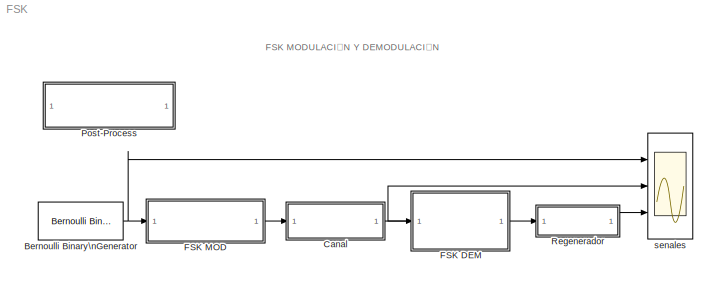
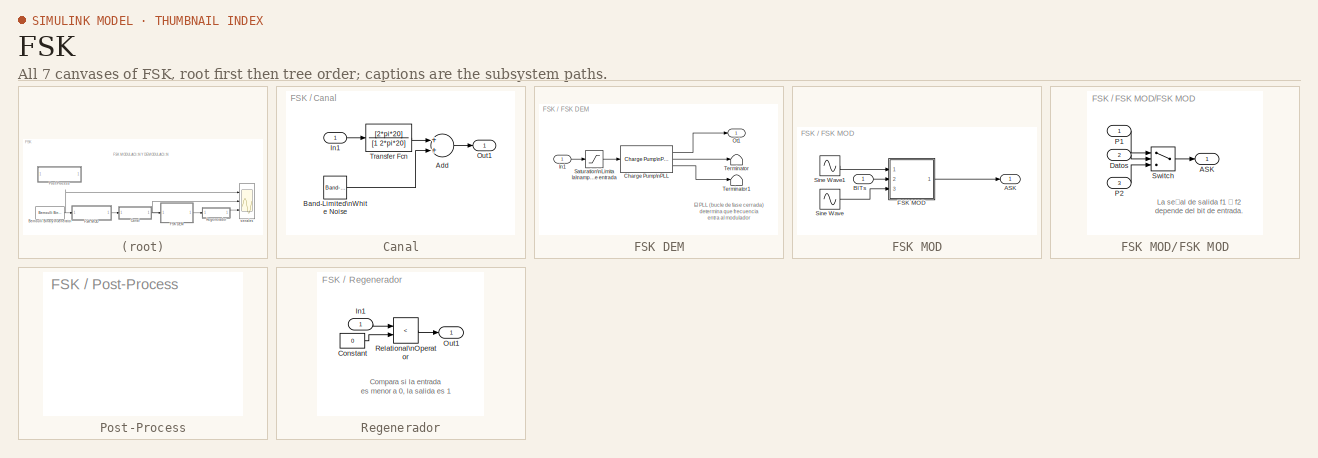
[diagram: thumbnail index - all 7 canvases of the model, root first then tree order]
MODEL FSK
KIND model
BLOCK [Reference] Bernoulli Binary\nGenerator  REF=commrandsrc2/Bernoulli Binary\nGenerator
  DialogController = commDDGCreate
  DialogControllerArgs = DataTag0
  FunctionWithSeparateData = off
  GeneratePreprocessorConditionals = off
  P = PZf
  Ports = [0, 1]
  RTWMemSecDataConstants = Inherit from model
  RTWMemSecDataInternal = Inherit from model
  RTWMemSecDataParameters = Inherit from model
  RTWMemSecFuncExecute = Inherit from model
  RTWMemSecFuncInitTerm = Inherit from model
  SID = 1
  ShowPortLabels = FromPortIcon
  SourceBlock = commrandsrc2/Bernoulli Binary\nGenerator
  SourceType = Bernoulli Binary Generator
  SystemSampleTime = -1
  Ts = BSTf
  frameBased = off
  orient = off
  outDataType = double
  sampPerFrame = 1
  seed = 61
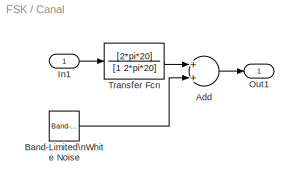
BLOCK [SubSystem] Canal
  FunctionWithSeparateData = off
  MaskHideContents = off
  MinAlgLoopOccurrences = off
  Opaque = off
  Ports = [1, 1]
  PropExecContextOutsideSubsystem = off
  RTWSystemCode = Auto
  RequestExecContextInheritance = off
  SID = 2
BLOCK [Sum] Canal/Add
  InputSameDT = off
  OutDataTypeStr = Inherit: Inherit via internal rule
  Ports = [2, 1]
  SID = 4
  SaturateOnIntegerOverflow = off
BLOCK [Reference] Canal/Band-Limited\nWhite Noise  REF=simulink/Sources/Band-Limited\nWhite Noise
  Cov = [0.002]
  FunctionWithSeparateData = off
  GeneratePreprocessorConditionals = off
  Ports = [0, 1]
  RTWMemSecDataConstants = Inherit from model
  RTWMemSecDataInternal = Inherit from model
  RTWMemSecDataParameters = Inherit from model
  RTWMemSecFuncExecute = Inherit from model
  RTWMemSecFuncInitTerm = Inherit from model
  SID = 5
  ShowPortLabels = FromPortIcon
  SourceBlock = simulink/Sources/Band-Limited\nWhite Noise
  SourceType = Band-Limited White Noise.
  SystemSampleTime = -1
  Ts = 1
  VectorParams1D = on
  seed = [23341]
BLOCK [Inport] Canal/In1
  IconDisplay = Port number
  SID = 3
BLOCK [Outport] Canal/Out1
  IconDisplay = Port number
  SID = 7
BLOCK [TransferFcn] Canal/Transfer Fcn
  Denominator = [1 2*pi*20]
  Numerator = [2*pi*20]
  SID = 6
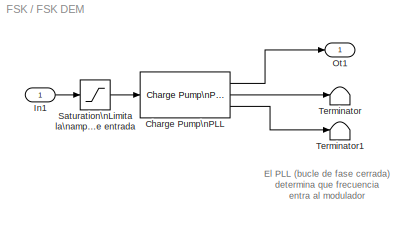
BLOCK [SubSystem] FSK DEM
  FunctionWithSeparateData = off
  MaskHideContents = off
  MinAlgLoopOccurrences = off
  Opaque = off
  Ports = [1, 1]
  PropExecContextOutsideSubsystem = off
  RTWSystemCode = Auto
  RequestExecContextInheritance = off
  SID = 8
BLOCK [Reference] FSK DEM/Charge Pump\nPLL  REF=commsynccomp2/Charge Pump\nPLL
  Ac = 1
  Fc = 10
  Fd = [1   2*pi*1]
  Fn = [2*pi*1]
  FunctionWithSeparateData = off
  GeneratePreprocessorConditionals = off
  Kvco = 4
  Ph = 0
  Ports = [1, 3]
  RTWMemSecDataConstants = Inherit from model
  RTWMemSecDataInternal = Inherit from model
  RTWMemSecDataParameters = Inherit from model
  RTWMemSecFuncExecute = Inherit from model
  RTWMemSecFuncInitTerm = Inherit from model
  SID = 10
  ShowPortLabels = FromPortIcon
  SourceBlock = commsynccomp2/Charge Pump\nPLL
  SourceType = Charge Pump PLL
  SystemSampleTime = -1
BLOCK [Inport] FSK DEM/In1
  IconDisplay = Port number
  SID = 9
BLOCK [Outport] FSK DEM/Ot1
  IconDisplay = Port number
  SID = 12
BLOCK [Saturate] FSK DEM/Saturation\nLimita la\namplitud de la\nseñal de entrada
  InputPortMap = u0
  Ports = [1, 1]
  SID = 11
BLOCK [Terminator] FSK DEM/Terminator
  SID = 31
BLOCK [Terminator] FSK DEM/Terminator1
  SID = 32
BLOCK [SubSystem] FSK MOD
  FunctionWithSeparateData = off
  MaskHideContents = off
  MinAlgLoopOccurrences = off
  Opaque = off
  Ports = [1, 1]
  PropExecContextOutsideSubsystem = off
  RTWSystemCode = Auto
  RequestExecContextInheritance = off
  SID = 13
BLOCK [Outport] FSK MOD/ASK
  IconDisplay = Port number
  SID = 23
BLOCK [Inport] FSK MOD/BITs
  IconDisplay = Port number
  SID = 14
BLOCK [SubSystem] FSK MOD/FSK MOD
  FunctionWithSeparateData = off
  MaskHideContents = off
  MinAlgLoopOccurrences = off
  Opaque = off
  Ports = [3, 1]
  PropExecContextOutsideSubsystem = off
  RTWSystemCode = Auto
  RequestExecContextInheritance = off
  SID = 15
BLOCK [Outport] FSK MOD/FSK MOD/ASK
  IconDisplay = Port number
  SID = 20
BLOCK [Inport] FSK MOD/FSK MOD/Datos
  IconDisplay = Port number
  Port = 2
  SID = 17
BLOCK [Inport] FSK MOD/FSK MOD/P1
  IconDisplay = Port number
  SID = 16
BLOCK [Inport] FSK MOD/FSK MOD/P2
  IconDisplay = Port number
  Port = 3
  SID = 18
BLOCK [Switch] FSK MOD/FSK MOD/Switch
  InputSameDT = off
  SID = 19
  SaturateOnIntegerOverflow = off
  Threshold = 0.5
BLOCK [Sin] FSK MOD/Sine Wave
  Amplitude = A2f
  Frequency = F2f
  Ports = [0, 1]
  SID = 21
  SampleTime = STf
  Samples = 25
BLOCK [Sin] FSK MOD/Sine Wave1
  Amplitude = A1f
  Frequency = F1f
  Ports = [0, 1]
  SID = 22
  SampleTime = STf
  Samples = 50
BLOCK [SubSystem] Post-Process
  FunctionWithSeparateData = off
  MaskCallbackString = |||||
  MaskDisplay = disp('Sim Parameters')
  MaskEnableString = on,on,on,on,on,on
  MaskHideContents = off
  MaskIconFrame = on
  MaskIconOpaque = on
  MaskIconRotate = none
  MaskIconUnits = autoscale
  MaskInitialization = %sim_t = 100; %simulation time\n%BSTf = 5; % source sample time\nPZf = .3; % probability of zero\n\n%STf = 1/100; % sample time\n%A1f = 1; % amplitude sine 1 - mod.\n%A2f = 1; % amplitude sine 2 - mod.\n%F1f = 2*pi*8; % Freg Sine 1\n%F2f = 2*pi*12; % Freg Sine 2\n\nswitch sim_t\n    case 1\n        sim_t = 25;\n    case 2\n        sim_t = 50;\n    case 3\n        sim_t = 100;\n    case 4\n        ...<+875ch>
  MaskPortRotate = default
  MaskPromptString = Sim Time [100]|Source Sample Time|Freq. Sine 1 [8K]|Amp. Sine 1 [1]|Freq. Sine 2 [12K]|Amp. Sine 2 [1]
  MaskStyleString = popup(25|50|100|250),popup(3|5|8|10|12),popup(6000|8000|10000|16000),edit,popup(8000|10000|12000|16000),edit
  MaskToolTipString = on,on,on,on,on,on
  MaskTunableValueString = on,on,on,on,on,on
  MaskValueString = 50|3|6000|1|12000|1
  MaskVariables = sim_t=@1;BSTf=@2;F1f=@3;A1f=@4;F2f=@5;A2f=@6;
  MaskVisibilityString = on,on,on,on,on,on
  MinAlgLoopOccurrences = off
  Opaque = off
  Ports = []
  PropExecContextOutsideSubsystem = off
  RTWSystemCode = Auto
  RequestExecContextInheritance = off
  SID = 30
BLOCK [SubSystem] Regenerador
  FunctionWithSeparateData = off
  MaskHideContents = off
  MinAlgLoopOccurrences = off
  Opaque = off
  Ports = [1, 1]
  PropExecContextOutsideSubsystem = off
  RTWSystemCode = Auto
  RequestExecContextInheritance = off
  SID = 24
BLOCK [Constant] Regenerador/Constant
  SID = 26
  Value = 0
BLOCK [Inport] Regenerador/In1
  IconDisplay = Port number
  SID = 25
BLOCK [Outport] Regenerador/Out1
  IconDisplay = Port number
  SID = 28
BLOCK [RelationalOperator] Regenerador/Relational\nOperator
  InputSameDT = off
  Operator = <
  OutDataTypeStr = boolean
  Ports = [2, 1]
  SID = 27
BLOCK [Scope] senales
  DataFormat = StructureWithTime
  Floating = off
  LimitDataPoints = off
  NumInputPorts = 3
  Ports = [3]
  SID = 29
  SampleTime = 0
  YMax = 1.5~2~1.5
  YMin = -0.5~-2~-0.5
  ZoomMode = xonly
ANNOTATION (root): FSK MODULACIÓN Y DEMODULACIÓN
ANNOTATION FSK DEM: El PLL (bucle de fase cerrada)\ndetermina que frecuencia\nentra al modulador
ANNOTATION FSK MOD/FSK MOD: La señal de salida f1 ó f2\ndepende del bit de entrada.
ANNOTATION Regenerador: Compara si la entrada\nes menor a 0, la salida es 1
NET Bernoulli Binary\nGenerator:1 -> FSK MOD:1, senales:1
LINE Canal/Add:1 -> Canal/Out1:1
LINE Canal/Band-Limited\nWhite Noise:1 -> Canal/Add:2
LINE Canal/In1:1 -> Canal/Transfer Fcn:1
LINE Canal/Transfer Fcn:1 -> Canal/Add:1
NET Canal:1 -> FSK DEM:1, senales:2
LINE FSK DEM/Charge Pump\nPLL:1 -> FSK DEM/Ot1:1
LINE FSK DEM/Charge Pump\nPLL:2 -> FSK DEM/Terminator:1
LINE FSK DEM/Charge Pump\nPLL:3 -> FSK DEM/Terminator1:1
LINE FSK DEM/In1:1 -> FSK DEM/Saturation\nLimita la\namplitud de la\nseñal de entrada:1
LINE FSK DEM/Saturation\nLimita la\namplitud de la\nseñal de entrada:1 -> FSK DEM/Charge Pump\nPLL:1
LINE FSK DEM:1 -> Regenerador:1
LINE FSK MOD/BITs:1 -> FSK MOD/FSK MOD:2
LINE FSK MOD/FSK MOD/Datos:1 -> FSK MOD/FSK MOD/Switch:2
LINE FSK MOD/FSK MOD/P1:1 -> FSK MOD/FSK MOD/Switch:1
LINE FSK MOD/FSK MOD/P2:1 -> FSK MOD/FSK MOD/Switch:3
LINE FSK MOD/FSK MOD/Switch:1 -> FSK MOD/FSK MOD/ASK:1
LINE FSK MOD/FSK MOD:1 -> FSK MOD/ASK:1
LINE FSK MOD/Sine Wave1:1 -> FSK MOD/FSK MOD:1
LINE FSK MOD/Sine Wave:1 -> FSK MOD/FSK MOD:3
LINE FSK MOD:1 -> Canal:1
LINE Regenerador/Constant:1 -> Regenerador/Relational\nOperator:2
LINE Regenerador/In1:1 -> Regenerador/Relational\nOperator:1
LINE Regenerador/Relational\nOperator:1 -> Regenerador/Out1:1
LINE Regenerador:1 -> senales:3
note: NET lines group one-source signal fan-out (src -> all destinations, sorted); 1:1 wires keep LINE
